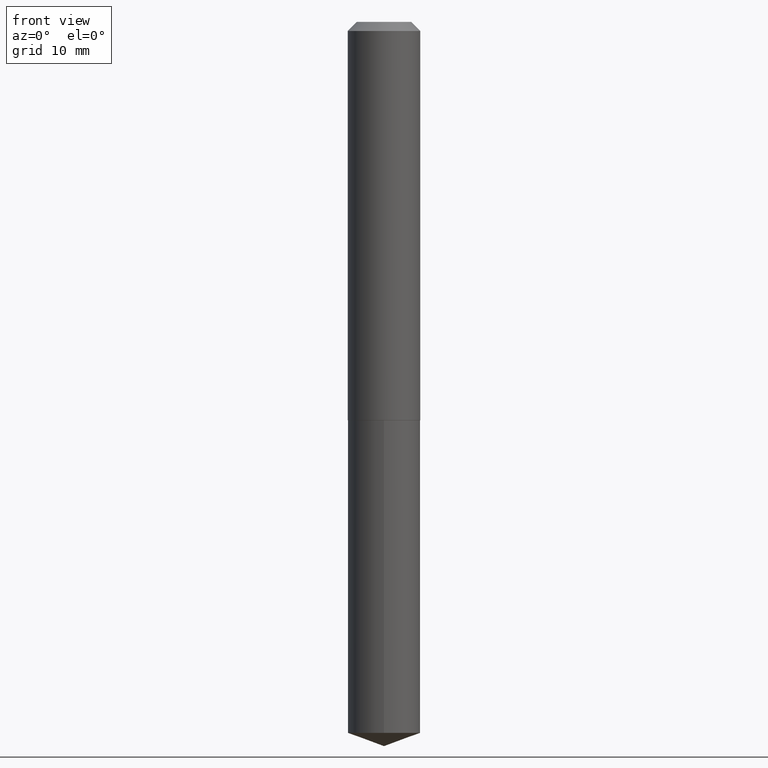
[diagram: clean part render]
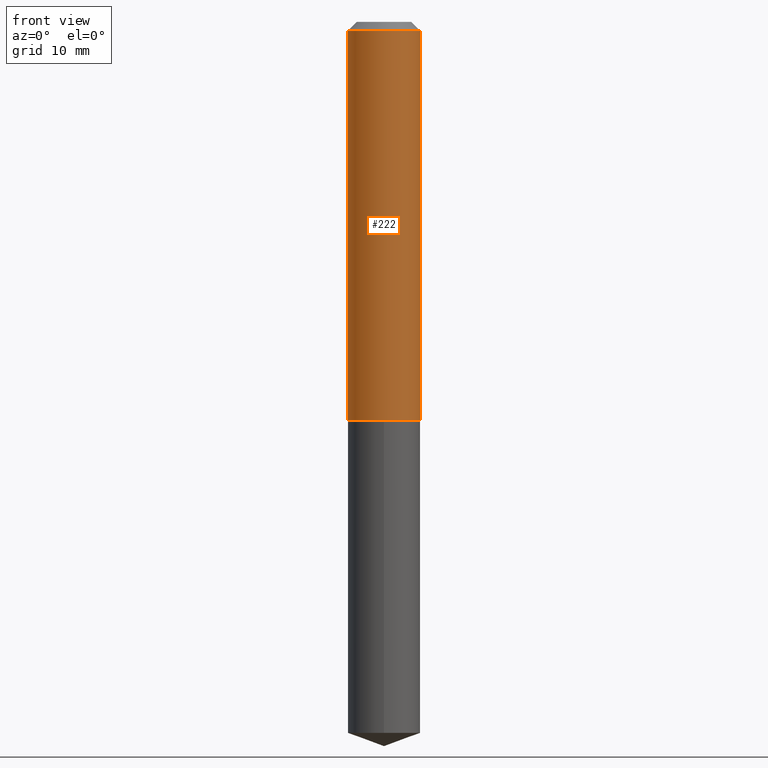
[diagram: same view with one face highlighted and labeled with its STEP entity id]
A machine part, front view. The second image highlights one B-rep face of the part: STEP entity #222.
In plain terms, the highlighted cylindrical surface (edge-blend (fillet) strip) has radius 3.175 mm, axis along (-0, 0, 1).
Its self-contained STEP definition (entity closure, byte-faithful):
#2 = CARTESIAN_POINT ( 'NONE',  ( 7.642090019328604414E-31, -1.091087918388490513E-16, -0.03125000000000021511 ) ) ;
#4 = DIRECTION ( 'NONE',  ( -2.445468806185136597E-29, 3.491481338843145583E-15, 1.000000000000000000 ) ) ;
#6 = CARTESIAN_POINT ( 'NONE',  ( 0.1250000000000000000, -9.819791265496324395E-16, -0.03125000000000021511 ) ) ;
#22 = CARTESIAN_POINT ( 'NONE',  ( -0.1250000000000000833, 8.881784197001258240E-16, -6.148668862818636431E-30 ) ) ;
#43 = DIRECTION ( 'NONE',  ( 1.000000000000000000, -6.982962677686269077E-15, 0.000000000000000000 ) ) ;
#48 = LINE ( 'NONE', #75, #338 ) ;
#52 = EDGE_CURVE ( 'NONE', #365, #173, #56, .T. ) ;
#56 = CIRCLE ( 'NONE', #128, 0.1250000000000001665 ) ;
#61 = ORIENTED_EDGE ( 'NONE', *, *, #109, .F. ) ;
#65 = CARTESIAN_POINT ( 'NONE',  ( 0.000000000000000000, 0.000000000000000000, 0.000000000000000000 ) ) ;
#75 = CARTESIAN_POINT ( 'NONE',  ( 0.1250000000000000833, -8.728703347107839305E-16, 6.095220969744923945E-30 ) ) ;
#85 = DIRECTION ( 'NONE',  ( -2.445468806185136597E-29, 3.491481338843145583E-15, 1.000000000000000000 ) ) ;
#89 = EDGE_LOOP ( 'NONE', ( #147, #220, #206, #61 ) ) ;
#90 = VERTEX_POINT ( 'NONE', #360 ) ;
#109 = EDGE_CURVE ( 'NONE', #90, #388, #274, .T. ) ;
#127 = CARTESIAN_POINT ( 'NONE',  ( -0.1250000000000001665, -3.910862680539777405E-15, -1.374500000000000055 ) ) ;
#128 = AXIS2_PLACEMENT_3D ( 'NONE', #133, #252, #43 ) ;
#133 = CARTESIAN_POINT ( 'NONE',  ( 3.361296874101470580E-29, -4.799041100239904215E-15, -1.374500000000000055 ) ) ;
#147 = ORIENTED_EDGE ( 'NONE', *, *, #263, .F. ) ;
#148 = CYLINDRICAL_SURFACE ( 'NONE', #373, 0.1250000000000000833 ) ;
#173 = VERTEX_POINT ( 'NONE', #375 ) ;
#176 = FACE_OUTER_BOUND ( 'NONE', #89, .T. ) ;
#177 = EDGE_CURVE ( 'NONE', #173, #388, #48, .T. ) ;
#206 = ORIENTED_EDGE ( 'NONE', *, *, #177, .T. ) ;
#220 = ORIENTED_EDGE ( 'NONE', *, *, #52, .T. ) ;
#222 = ADVANCED_FACE ( 'NONE', ( #176 ), #148, .T. ) ;
#236 = AXIS2_PLACEMENT_3D ( 'NONE', #2, #85, #369 ) ;
#245 = DIRECTION ( 'NONE',  ( 1.000000000000000000, -6.982962677686266711E-15, 4.876176775795935793E-29 ) ) ;
#248 = LINE ( 'NONE', #22, #377 ) ;
#252 = DIRECTION ( 'NONE',  ( -2.445468806185136597E-29, 3.491481338843145583E-15, 1.000000000000000000 ) ) ;
#263 = EDGE_CURVE ( 'NONE', #365, #90, #248, .T. ) ;
#274 = CIRCLE ( 'NONE', #236, 0.1250000000000000000 ) ;
#276 = DIRECTION ( 'NONE',  ( -2.445468806185136877E-29, 3.491481338843145188E-15, 1.000000000000000000 ) ) ;
#320 = DIRECTION ( 'NONE',  ( -2.445468806185136877E-29, 3.491481338843145188E-15, 1.000000000000000000 ) ) ;
#338 = VECTOR ( 'NONE', #320, 39.37007874015748143 ) ;
#360 = CARTESIAN_POINT ( 'NONE',  ( -0.1250000000000000000, -1.565896526339250439E-15, -0.03125000000000021511 ) ) ;
#365 = VERTEX_POINT ( 'NONE', #127 ) ;
#369 = DIRECTION ( 'NONE',  ( 1.000000000000000000, -6.982962677686266711E-15, 0.000000000000000000 ) ) ;
#373 = AXIS2_PLACEMENT_3D ( 'NONE', #65, #4, #245 ) ;
#375 = CARTESIAN_POINT ( 'NONE',  ( 0.1250000000000001665, -5.671911434950688343E-15, -1.374500000000000055 ) ) ;
#377 = VECTOR ( 'NONE', #276, 39.37007874015748143 ) ;
#388 = VERTEX_POINT ( 'NONE', #6 ) ;